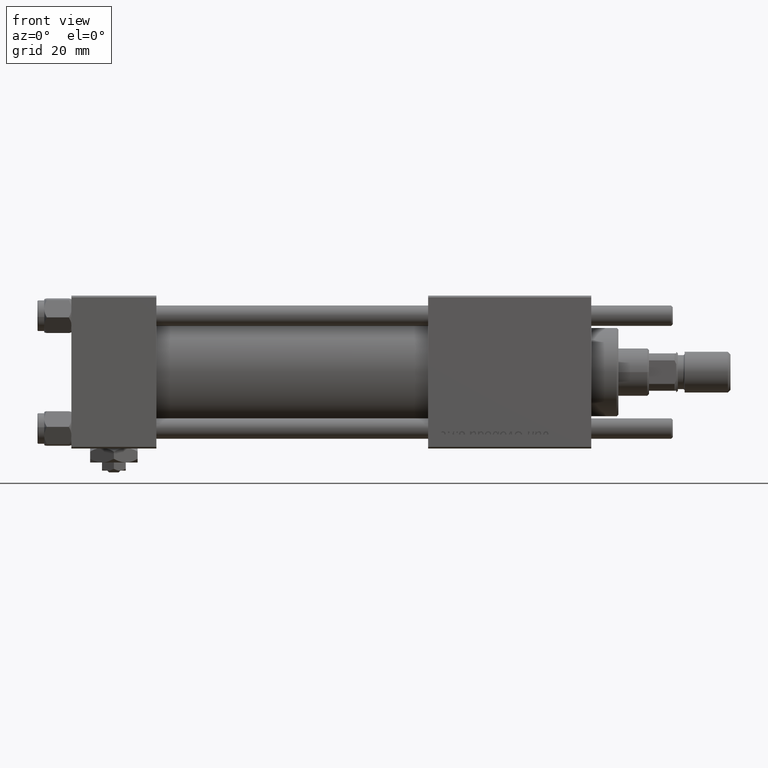
[diagram: clean part render]
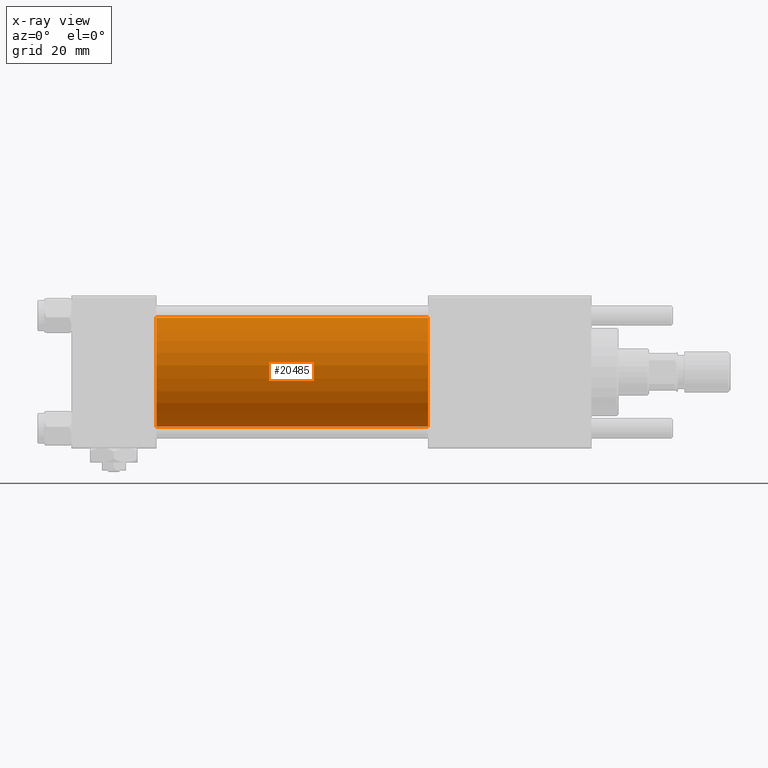
[diagram: x-ray — body ghosted, one internal face saturated and labeled with its STEP entity id]
A machine part, front view, then the same camera in x-ray: the body is ghosted and one INTERNAL B-rep face — a face not visible from any outside direction — is saturated and labeled: STEP entity #20485.
In plain terms, the highlighted cylindrical surface (partial cylindrical patch) has radius 16 mm, axis along (-1, -0, -0).
Its self-contained STEP definition (entity closure, byte-faithful):
#6977 = ORIENTED_EDGE ( 'NONE', *, *, #14776, .T. ) ;
#11545 = DIRECTION ( 'NONE',  ( 1.000000000000000000, 0.000000000000000000, 0.000000000000000000 ) ) ;
#12416 = CYLINDRICAL_SURFACE ( 'NONE', #15759, 16.00000000000000000 ) ;
#13197 = EDGE_CURVE ( 'NONE', #51960, #40963, #57748, .T. ) ;
#13471 = CARTESIAN_POINT ( 'NONE',  ( 25.00000000000000000, -6.426503353294456087E-16, -16.00000000000000000 ) ) ;
#14776 = EDGE_CURVE ( 'NONE', #29063, #25171, #56349, .T. ) ;
#15446 = DIRECTION ( 'NONE',  ( 0.000000000000000000, 0.000000000000000000, -1.000000000000000000 ) ) ;
#15759 = AXIS2_PLACEMENT_3D ( 'NONE', #30625, #32698, #51486 ) ;
#16092 = CARTESIAN_POINT ( 'NONE',  ( 25.00000000000000000, -2.602085213965210642E-15, 0.000000000000000000 ) ) ;
#16892 = FACE_OUTER_BOUND ( 'NONE', #29863, .T. ) ;
#17293 = AXIS2_PLACEMENT_3D ( 'NONE', #16092, #47442, #52500 ) ;
#17807 = AXIS2_PLACEMENT_3D ( 'NONE', #29475, #11545, #15446 ) ;
#20485 = ADVANCED_FACE ( 'NONE', ( #16892 ), #12416, .F. ) ;
#25171 = VERTEX_POINT ( 'NONE', #13471 ) ;
#26705 = CARTESIAN_POINT ( 'NONE',  ( 105.0000000000000142, -2.602085213965210642E-15, 16.00000000000000000 ) ) ;
#28203 = EDGE_CURVE ( 'NONE', #51960, #29063, #28326, .T. ) ;
#28326 = CIRCLE ( 'NONE', #17807, 16.00000000000000000 ) ;
#28908 = VECTOR ( 'NONE', #58324, 1000.000000000000000 ) ;
#29063 = VERTEX_POINT ( 'NONE', #51868 ) ;
#29475 = CARTESIAN_POINT ( 'NONE',  ( 105.0000000000000142, -2.602085213965210642E-15, 0.000000000000000000 ) ) ;
#29863 = EDGE_LOOP ( 'NONE', ( #38510, #6977, #50953, #46089 ) ) ;
#30625 = CARTESIAN_POINT ( 'NONE',  ( 105.0000000000000142, -2.602085213965210642E-15, 0.000000000000000000 ) ) ;
#32698 = DIRECTION ( 'NONE',  ( -1.000000000000000000, -0.000000000000000000, -0.000000000000000000 ) ) ;
#33716 = VECTOR ( 'NONE', #51005, 1000.000000000000000 ) ;
#38510 = ORIENTED_EDGE ( 'NONE', *, *, #28203, .T. ) ;
#40963 = VERTEX_POINT ( 'NONE', #47485 ) ;
#41366 = CARTESIAN_POINT ( 'NONE',  ( 105.0000000000000142, -2.602085213965210642E-15, 16.00000000000000000 ) ) ;
#42343 = CARTESIAN_POINT ( 'NONE',  ( 105.0000000000000142, -6.426503353294456087E-16, -16.00000000000000000 ) ) ;
#43036 = CIRCLE ( 'NONE', #17293, 16.00000000000000000 ) ;
#43202 = EDGE_CURVE ( 'NONE', #40963, #25171, #43036, .T. ) ;
#46089 = ORIENTED_EDGE ( 'NONE', *, *, #13197, .F. ) ;
#47442 = DIRECTION ( 'NONE',  ( 1.000000000000000000, 0.000000000000000000, 0.000000000000000000 ) ) ;
#47485 = CARTESIAN_POINT ( 'NONE',  ( 25.00000000000000000, -2.602085213965210642E-15, 16.00000000000000000 ) ) ;
#50953 = ORIENTED_EDGE ( 'NONE', *, *, #43202, .F. ) ;
#51005 = DIRECTION ( 'NONE',  ( -1.000000000000000000, -0.000000000000000000, -0.000000000000000000 ) ) ;
#51486 = DIRECTION ( 'NONE',  ( 0.000000000000000000, 0.000000000000000000, 1.000000000000000000 ) ) ;
#51868 = CARTESIAN_POINT ( 'NONE',  ( 105.0000000000000142, -6.426503353294456087E-16, -16.00000000000000000 ) ) ;
#51960 = VERTEX_POINT ( 'NONE', #41366 ) ;
#52500 = DIRECTION ( 'NONE',  ( 0.000000000000000000, 0.000000000000000000, -1.000000000000000000 ) ) ;
#56349 = LINE ( 'NONE', #42343, #33716 ) ;
#57748 = LINE ( 'NONE', #26705, #28908 ) ;
#58324 = DIRECTION ( 'NONE',  ( -1.000000000000000000, -0.000000000000000000, -0.000000000000000000 ) ) ;